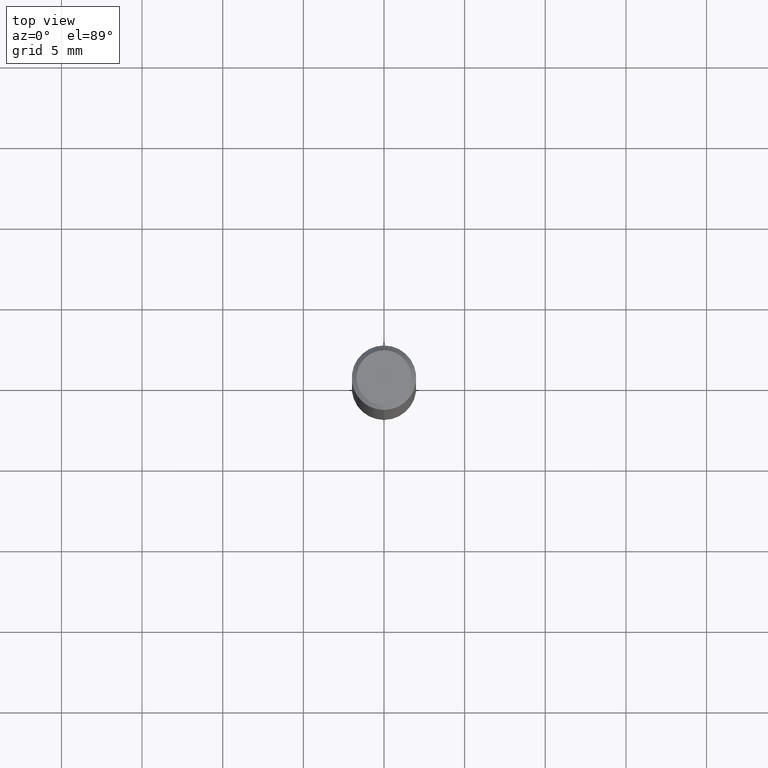
[diagram: clean part render]
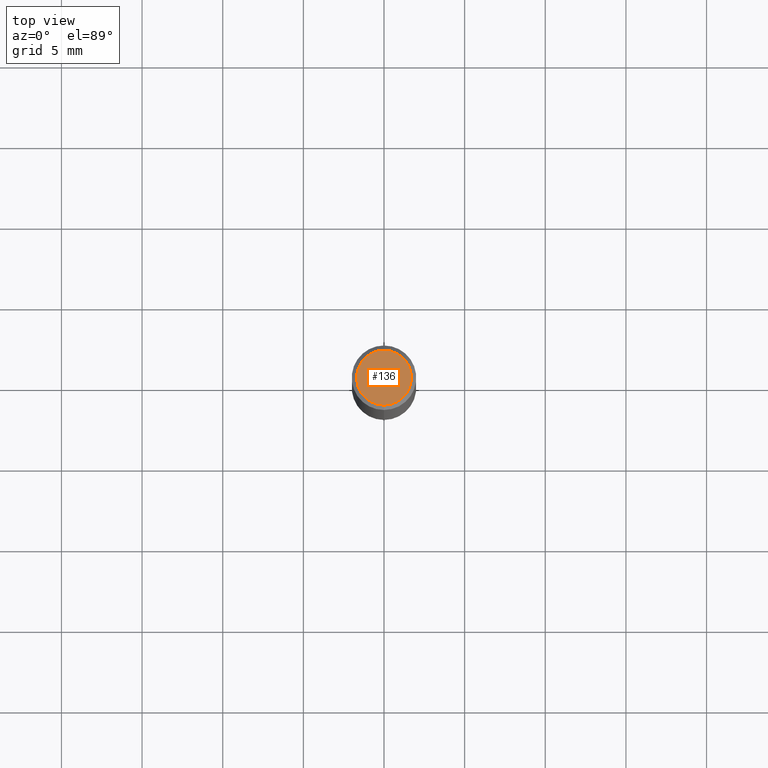
[diagram: same view with one face highlighted and labeled with its STEP entity id]
A machine part, top view. The second image highlights one B-rep face of the part: STEP entity #136.
In plain terms, the highlighted planar face has unit normal (-0, 0, 1).
Its self-contained STEP definition (entity closure, byte-faithful):
#122=EDGE_CURVE('',#202,#156,#261,.T.);
#136=ADVANCED_FACE('',(#276),#277,.T.);
#156=VERTEX_POINT('',#302);
#158=EDGE_CURVE('',#156,#202,#304,.T.);
#202=VERTEX_POINT('',#353);
#261=CIRCLE('',#419,1.7);
#276=FACE_OUTER_BOUND('',#438,.T.);
#277=PLANE('',#439);
#302=CARTESIAN_POINT('',(0.0,1.7,0.0));
#304=CIRCLE('',#469,1.7);
#353=CARTESIAN_POINT('',(2.08183080149804E-016,-1.7,0.0));
#419=AXIS2_PLACEMENT_3D('',#574,#575,#576);
#438=EDGE_LOOP('',(#593,#594));
#439=AXIS2_PLACEMENT_3D('',#595,#596,#597);
#469=AXIS2_PLACEMENT_3D('',#635,#636,#637);
#574=CARTESIAN_POINT('',(0.0,0.0,0.0));
#575=DIRECTION('',(0.0,0.0,-1.0));
#576=DIRECTION('',(0.0,1.0,0.0));
#593=ORIENTED_EDGE('',*,*,#158,.F.);
#594=ORIENTED_EDGE('',*,*,#122,.F.);
#595=CARTESIAN_POINT('',(0.0,0.85,0.0));
#596=DIRECTION('',(-0.0,0.0,1.0));
#597=DIRECTION('',(0.0,-1.0,0.0));
#635=CARTESIAN_POINT('',(0.0,0.0,0.0));
#636=DIRECTION('',(0.0,0.0,-1.0));
#637=DIRECTION('',(0.0,1.0,0.0));